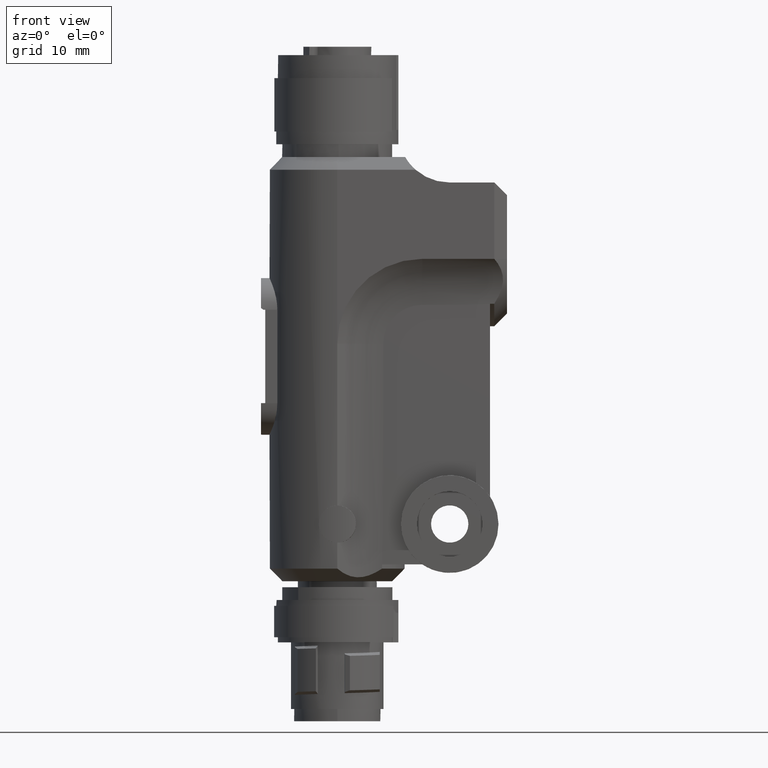
[diagram: clean part render]
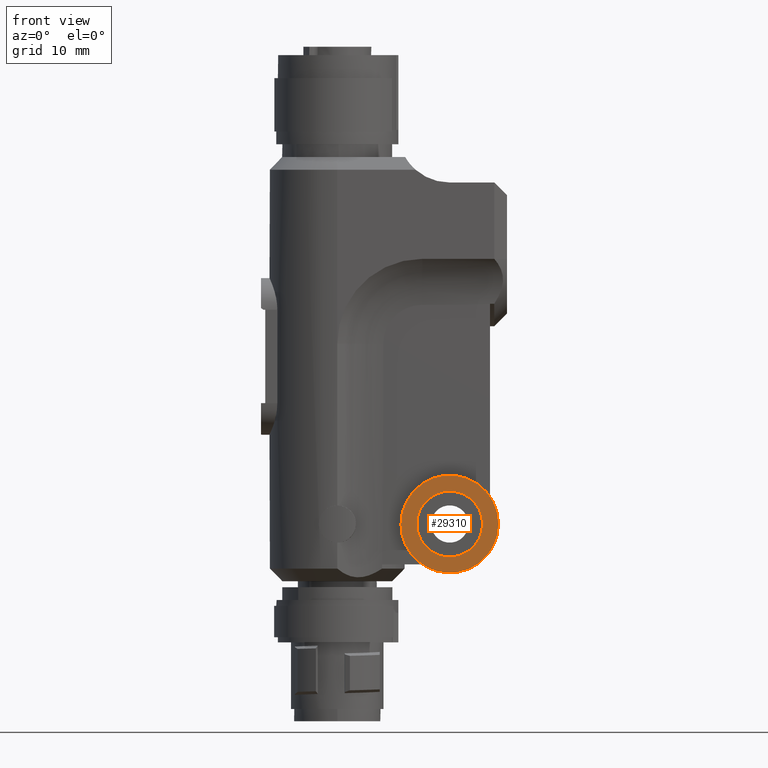
[diagram: same view with one face highlighted and labeled with its STEP entity id]
A machine part, front view. The second image highlights one B-rep face of the part: STEP entity #29310.
In plain terms, the highlighted planar face has unit normal (0, -1, 0).
Its self-contained STEP definition (entity closure, byte-faithful):
#10130=CARTESIAN_POINT('',(8.,13.25,6.75000000000001));
#10140=DIRECTION('',(1.,0.,0.));
#10150=DIRECTION('',(0.,1.,0.));
#10160=AXIS2_PLACEMENT_3D('',#10130,#10140,#10150);
#10170=CIRCLE('',#10160,5.75000000000003);
#10180=CARTESIAN_POINT('',(8.,10.5214545305889,1.688622754491));
#10190=VERTEX_POINT('',#10180);
#10200=CARTESIAN_POINT('',(8.,19.,6.75000000000001));
#10210=VERTEX_POINT('',#10200);
#10220=EDGE_CURVE('',#10190,#10210,#10170,.T.);
#10750=CARTESIAN_POINT('',(8.,7.49999999999997,6.75000000000001));
#10760=VERTEX_POINT('',#10750);
#10790=EDGE_CURVE('',#10760,#10190,#10170,.T.);
#29010=CARTESIAN_POINT('',(8.,13.25,11.3125));
#29020=DIRECTION('',(1.,0.,-0.));
#29030=DIRECTION('',(0.,0.,1.));
#29040=AXIS2_PLACEMENT_3D('',#29010,#29020,#29030);
#29050=PLANE('',#29040);
#29060=CARTESIAN_POINT('',(8.,13.25,6.75000000000001));
#29070=DIRECTION('',(1.,0.,0.));
#29080=DIRECTION('',(0.,1.,0.));
#29090=AXIS2_PLACEMENT_3D('',#29060,#29070,#29080);
#29100=CIRCLE('',#29090,3.87499999999999);
#29110=CARTESIAN_POINT('',(8.,13.25,10.625));
#29120=VERTEX_POINT('',#29110);
#29130=CARTESIAN_POINT('',(8.,9.37500000000003,6.75000000000001));
#29140=VERTEX_POINT('',#29130);
#29150=EDGE_CURVE('',#29120,#29140,#29100,.T.);
#29160=ORIENTED_EDGE('',*,*,#29150,.F.);
#29170=CARTESIAN_POINT('',(8.,17.125,6.75000000000001));
#29180=VERTEX_POINT('',#29170);
#29190=EDGE_CURVE('',#29140,#29180,#29100,.T.);
#29200=ORIENTED_EDGE('',*,*,#29190,.F.);
#29210=EDGE_CURVE('',#29180,#29120,#29100,.T.);
#29220=ORIENTED_EDGE('',*,*,#29210,.F.);
#29230=EDGE_LOOP('',(#29220,#29200,#29160));
#29240=FACE_BOUND('',#29230,.T.);
#29250=EDGE_CURVE('',#10210,#10760,#10170,.T.);
#29260=ORIENTED_EDGE('',*,*,#29250,.T.);
#29270=ORIENTED_EDGE('',*,*,#10220,.T.);
#29280=ORIENTED_EDGE('',*,*,#10790,.T.);
#29290=EDGE_LOOP('',(#29280,#29270,#29260));
#29300=FACE_OUTER_BOUND('',#29290,.T.);
#29310=ADVANCED_FACE('',(#29240,#29300),#29050,.T.);